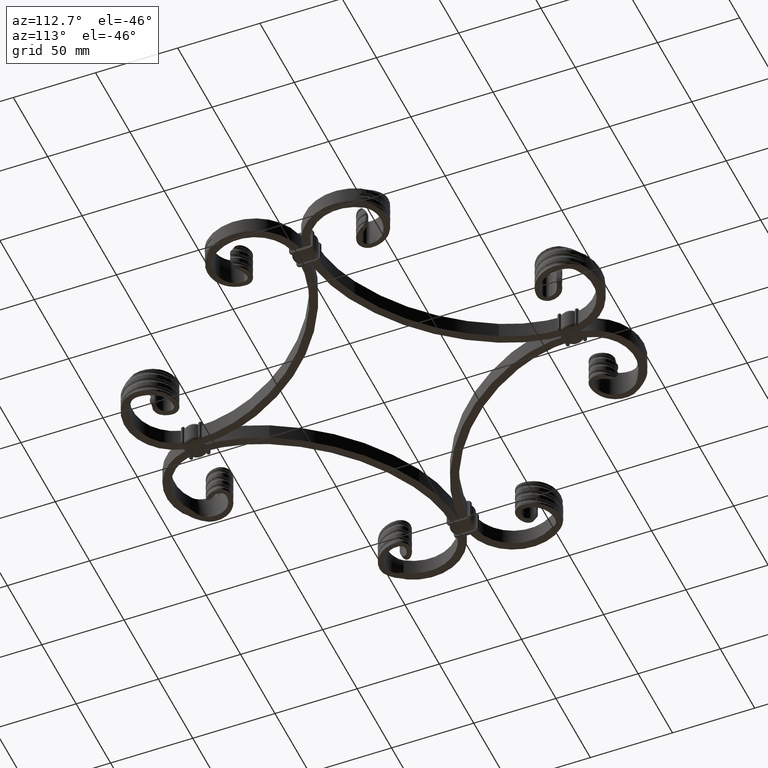
[diagram: clean part render]
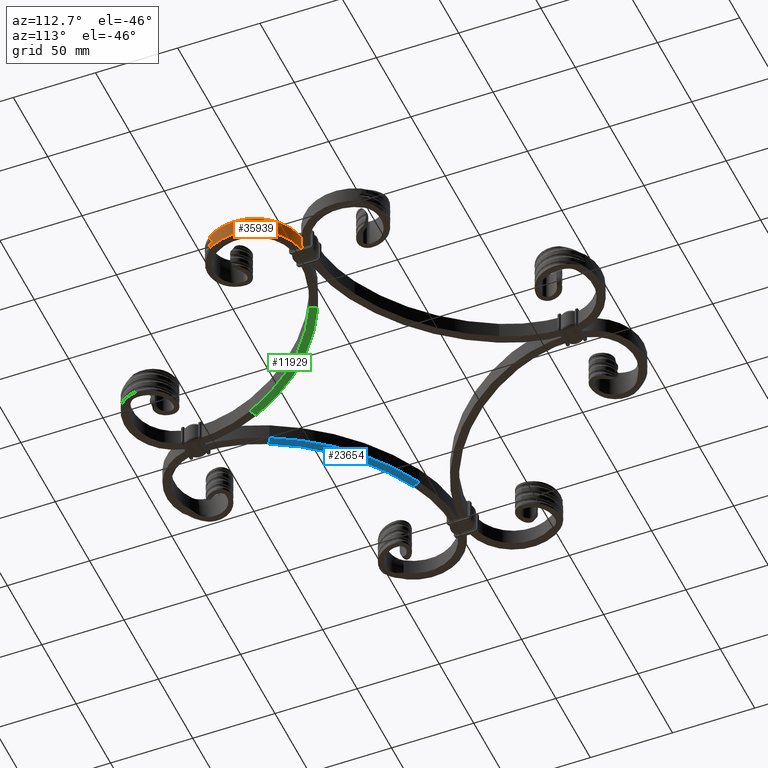
[diagram: same view with three faces highlighted in distinct colors, each labeled with its STEP entity id]
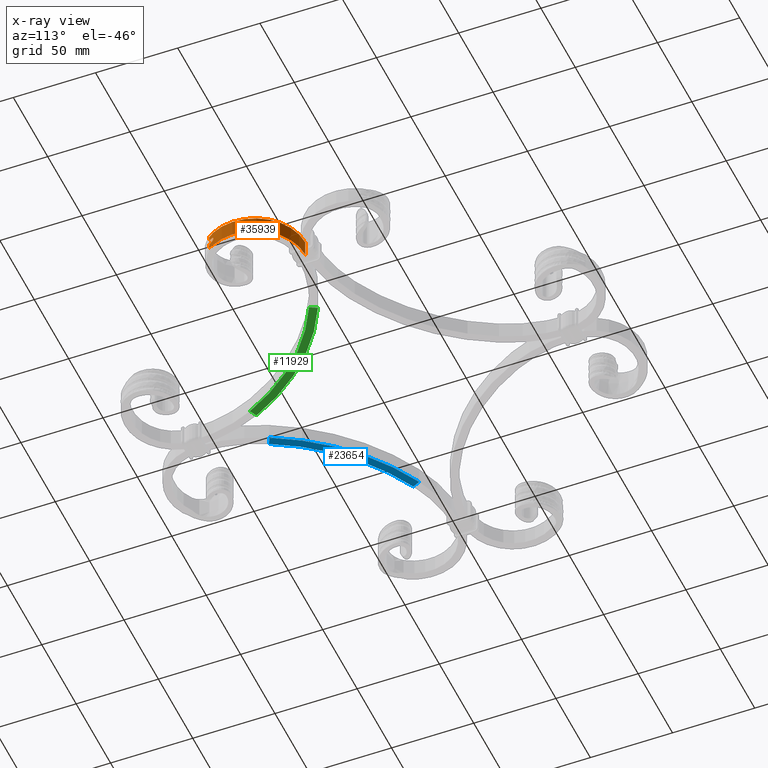
[diagram: x-ray of the same camera — body ghosted, the three highlighted faces saturated]
A machine part, auxiliary view with three faces highlighted in distinct colors.
The next image is the same camera in x-ray (body ghosted, the three faces saturated) — at least one of them is partly hidden behind the body in this view.
Their STEP definitions:

[orange] entity #35939 — the highlighted cylindrical surface (partial cylindrical patch) has radius 30.4695 mm, axis along (0, 0, 1).
#19 = CARTESIAN_POINT ( 'NONE',  ( 140.6554664666796270, -46.15419083764390251, 1.468416354188947226 ) ) ;
#354 = VECTOR ( 'NONE', #7925, 1000.000000000000000 ) ;
#666 = CARTESIAN_POINT ( 'NONE',  ( 114.5304832720491959, 9.016337449527278873E-13, -5.000000000000000000 ) ) ;
#1956 = VERTEX_POINT ( 'NONE', #33134 ) ;
#2537 = ORIENTED_EDGE ( 'NONE', *, *, #31766, .F. ) ;
#2780 = CARTESIAN_POINT ( 'NONE',  ( 141.2721817200941814, -45.07379470579365943, -4.915364388514712246 ) ) ;
#2886 = CARTESIAN_POINT ( 'NONE',  ( 140.6945728414789585, -46.08702286652270175, 4.550162584907438301 ) ) ;
#3043 = ORIENTED_EDGE ( 'NONE', *, *, #11089, .F. ) ;
#3052 = CARTESIAN_POINT ( 'NONE',  ( 141.2723333997182920, -45.07351458569133484, 4.915611313457723952 ) ) ;
#3319 = VERTEX_POINT ( 'NONE', #14822 ) ;
#3390 = CIRCLE ( 'NONE', #8620, 30.46951672795090005 ) ;
#3682 = CARTESIAN_POINT ( 'NONE',  ( 141.4645563596654938, -44.71571747425655019, 0.7114389754741711203 ) ) ;
#4063 = ORIENTED_EDGE ( 'NONE', *, *, #4640, .F. ) ;
#4148 = CARTESIAN_POINT ( 'NONE',  ( 141.2695474524247459, -45.07892962151321115, 1.094483759277297352 ) ) ;
#4381 = LINE ( 'NONE', #32810, #40998 ) ;
#4545 = EDGE_CURVE ( 'NONE', #27748, #15864, #29169, .T. ) ;
#4640 = EDGE_CURVE ( 'NONE', #5625, #43395, #22785, .T. ) ;
#5208 = EDGE_CURVE ( 'NONE', #1956, #3319, #4381, .T. ) ;
#5421 = CARTESIAN_POINT ( 'NONE',  ( 141.3241711968811671, -44.97778116659321057, 5.000000000000079048 ) ) ;
#5564 = CARTESIAN_POINT ( 'NONE',  ( 140.2649402851284890, -46.78527609127762332, 4.504376503602125048 ) ) ;
#5625 = VERTEX_POINT ( 'NONE', #19181 ) ;
#5956 = CARTESIAN_POINT ( 'NONE',  ( 139.8161792026994590, -47.47245653978914248, -4.500000000000015099 ) ) ;
#6363 = CARTESIAN_POINT ( 'NONE',  ( 141.0304201162989841, -45.50820771171139967, 4.689710995915433500 ) ) ;
#6408 = CARTESIAN_POINT ( 'NONE',  ( 139.9678844205747907, -47.24464660221566703, -4.499376343627626618 ) ) ;
#6845 = VERTEX_POINT ( 'NONE', #22157 ) ;
#7275 = CARTESIAN_POINT ( 'NONE',  ( 139.8694392070598553, -47.39476805936561021, 1.499999999999978018 ) ) ;
#7609 = CARTESIAN_POINT ( 'NONE',  ( 139.6613977379700771, -47.69823077576722170, 1.499999999999977573 ) ) ;
#7789 = DIRECTION ( 'NONE',  ( 0.000000000000000000, 0.000000000000000000, 1.000000000000000000 ) ) ;
#7925 = DIRECTION ( 'NONE',  ( 0.000000000000000000, 0.000000000000000000, 1.000000000000000000 ) ) ;
#7966 = DIRECTION ( 'NONE',  ( 0.8247887451024523697, -0.5654410013010391367, 0.000000000000000000 ) ) ;
#8183 = CARTESIAN_POINT ( 'NONE',  ( 114.5304832720493096, -30.46951672795001897, 0.000000000000000000 ) ) ;
#8620 = AXIS2_PLACEMENT_3D ( 'NONE', #37071, #44174, #7966 ) ;
#9820 = CARTESIAN_POINT ( 'NONE',  ( 139.8712379724813388, -47.39214426400684488, -1.500000000000022649 ) ) ;
#10274 = CARTESIAN_POINT ( 'NONE',  ( 140.4722264223045443, -46.45560204416413086, -1.485219069069639852 ) ) ;
#10582 = CARTESIAN_POINT ( 'NONE',  ( 141.5428231871173068, -44.56675124773936147, 0.3778545635833334693 ) ) ;
#11089 = EDGE_CURVE ( 'NONE', #43395, #6845, #3390, .T. ) ;
#12793 = CARTESIAN_POINT ( 'NONE',  ( 140.8334479785272038, -45.85181875860420320, 4.584752386527465973 ) ) ;
#12878 = ORIENTED_EDGE ( 'NONE', *, *, #4545, .T. ) ;
#13393 = CARTESIAN_POINT ( 'NONE',  ( 141.3241711968878178, -44.97778116658094660, -4.999999999999969802 ) ) ;
#13622 = CARTESIAN_POINT ( 'NONE',  ( 139.6613977379699634, -47.69823077576715065, -4.500000000000015099 ) ) ;
#14021 = CARTESIAN_POINT ( 'NONE',  ( 141.1981766138289629, -45.20910745669215913, -1.176023217423316281 ) ) ;
#14187 = CARTESIAN_POINT ( 'NONE',  ( 141.5255479493486348, -44.59961254758766103, -0.4490057321185622063 ) ) ;
#14487 = CARTESIAN_POINT ( 'NONE',  ( 140.4649051717062775, -46.46739171962153847, 1.485759726149536775 ) ) ;
#14690 = ORIENTED_EDGE ( 'NONE', *, *, #5208, .F. ) ;
#14822 = CARTESIAN_POINT ( 'NONE',  ( 139.6613977379701339, -47.69823077576707959, -1.500000000000022649 ) ) ;
#15864 = VERTEX_POINT ( 'NONE', #45289 ) ;
#17466 = CARTESIAN_POINT ( 'NONE',  ( 140.6658603228831339, -46.13683661763862176, -1.466532922022341312 ) ) ;
#17623 = CARTESIAN_POINT ( 'NONE',  ( 141.3787612013158252, -44.87668556549240861, -0.9053052284286475793 ) ) ;
#17786 = CARTESIAN_POINT ( 'NONE',  ( 141.5399494908222664, -44.57202098985437999, -0.3620268363603049155 ) ) ;
#18264 = CARTESIAN_POINT ( 'NONE',  ( 141.5642415964513248, -44.52538243320170608, -0.08651942410123461547 ) ) ;
#19181 = CARTESIAN_POINT ( 'NONE',  ( 139.6613977379699634, -47.69823077576731407, 4.499999999999976019 ) ) ;
#19592 = AXIS2_PLACEMENT_3D ( 'NONE', #8183, #43751, #22599 ) ;
#20221 = CARTESIAN_POINT ( 'NONE',  ( 140.4106816926358192, -46.55308274981756966, -4.509962772289054733 ) ) ;
#20775 = CARTESIAN_POINT ( 'NONE',  ( 139.8161422961368316, -47.47251037408415897, 4.499999999999974243 ) ) ;
#20932 = CARTESIAN_POINT ( 'NONE',  ( 139.9678514185735310, -47.24469431682299358, 4.499377645973954287 ) ) ;
#21088 = CARTESIAN_POINT ( 'NONE',  ( 139.6613977379699634, -47.69823077576731407, 4.499999999999976019 ) ) ;
#21243 = CARTESIAN_POINT ( 'NONE',  ( 141.4636034647748772, -44.71738763677644357, -0.6956814435000349128 ) ) ;
#22018 = CARTESIAN_POINT ( 'NONE',  ( 141.1896556982987079, -45.22450301914596338, 1.184641575808835334 ) ) ;
#22157 = CARTESIAN_POINT ( 'NONE',  ( 114.5304832720491959, 8.877559571449134306E-13, 5.000000000000000000 ) ) ;
#22599 = DIRECTION ( 'NONE',  ( -7.742899069889897721E-15, 1.000000000000000000, 0.000000000000000000 ) ) ;
#22785 = B_SPLINE_CURVE_WITH_KNOTS ( 'NONE', 3,
 ( #21088, #20775, #20932, #5564, #34358, #2886, #12793, #6363, #38918, #45995, #3052, #5421 ),
 .UNSPECIFIED., .F., .F.,
 ( 4, 2, 2, 2, 2, 4 ),
 ( 3.700981311091291441E-15, 0.0008209994016751896283, 0.001641998803346678224, 0.002462998205018167037, 0.002873497905853910576, 0.003283997606689654548 ),
 .UNSPECIFIED. ) ;
#23137 = DIRECTION ( 'NONE',  ( -0.000000000000000000, 0.000000000000000000, 1.000000000000000000 ) ) ;
#23976 = CARTESIAN_POINT ( 'NONE',  ( 141.3241711968878178, -44.97778116658094660, -4.999999999999969802 ) ) ;
#24121 = CARTESIAN_POINT ( 'NONE',  ( 140.8335281945370241, -45.85166160195142027, -4.584896144568666898 ) ) ;
#24287 = CARTESIAN_POINT ( 'NONE',  ( 141.0296407782646781, -45.50957580252627110, -4.689245495752950355 ) ) ;
#24689 = CARTESIAN_POINT ( 'NONE',  ( 140.9398570530420045, -45.66719007786604578, -1.363250527713951277 ) ) ;
#24709 = DIRECTION ( 'NONE',  ( 0.000000000000000000, 0.000000000000000000, 1.000000000000000000 ) ) ;
#25013 = CARTESIAN_POINT ( 'NONE',  ( 140.0718981202305429, -47.08765053026567671, 1.502022559709911498 ) ) ;
#25145 = CARTESIAN_POINT ( 'NONE',  ( 139.6613977379700771, -47.69823077576722170, 1.499999999999977573 ) ) ;
#25527 = EDGE_CURVE ( 'NONE', #15864, #6845, #44350, .T. ) ;
#27445 = CARTESIAN_POINT ( 'NONE',  ( 140.2651253087101395, -46.78498664868529033, -4.504381475841178428 ) ) ;
#27748 = VERTEX_POINT ( 'NONE', #13393 ) ;
#27826 = EDGE_LOOP ( 'NONE', ( #42544, #14690, #2537, #12878, #43326, #3043, #4063, #40233 ) ) ;
#27913 = CARTESIAN_POINT ( 'NONE',  ( 140.6943149679063936, -46.08744479986689413, -4.550129236119011544 ) ) ;
#28327 = CARTESIAN_POINT ( 'NONE',  ( 141.0290160252046405, -45.51109792648033192, -1.315637206574596707 ) ) ;
#28531 = VECTOR ( 'NONE', #24709, 1000.000000000000000 ) ;
#28806 = CARTESIAN_POINT ( 'NONE',  ( 141.5593904431286489, -44.53472447676206514, -0.1807288418930112772 ) ) ;
#29115 = CARTESIAN_POINT ( 'NONE',  ( 141.4874894964794692, -44.67208481332625070, -0.6158337506773432501 ) ) ;
#29169 = CIRCLE ( 'NONE', #45115, 30.46951672795090005 ) ;
#30694 = CARTESIAN_POINT ( 'NONE',  ( 141.3241711968811671, -44.97778116659321057, 5.000000000000079048 ) ) ;
#31766 = EDGE_CURVE ( 'NONE', #27748, #1956, #33319, .T. ) ;
#32327 = CARTESIAN_POINT ( 'NONE',  ( 139.6613977379741129, -47.69823077576133130, -5.000000000000000000 ) ) ;
#32547 = LINE ( 'NONE', #32327, #28531 ) ;
#32810 = CARTESIAN_POINT ( 'NONE',  ( 139.6613977379741129, -47.69823077576133130, -5.000000000000000000 ) ) ;
#33134 = CARTESIAN_POINT ( 'NONE',  ( 139.6613977379699634, -47.69823077576715065, -4.500000000000015099 ) ) ;
#33319 = B_SPLINE_CURVE_WITH_KNOTS ( 'NONE', 3,
 ( #23976, #2780, #45748, #42258, #24287, #24121, #27913, #20221, #27445, #6408, #5956, #13622 ),
 .UNSPECIFIED., .F., .F.,
 ( 4, 2, 2, 2, 2, 4 ),
 ( 1.094938989341896718E-16, 0.0004123031997085823937, 0.0008246063994170552830, 0.001649212798834041394, 0.002473819198251027071, 0.003298425597668013399 ),
 .UNSPECIFIED. ) ;
#34048 = EDGE_CURVE ( 'NONE', #3319, #37573, #37532, .T. ) ;
#34358 = CARTESIAN_POINT ( 'NONE',  ( 140.4103383765897206, -46.55364495280203840, 4.509917324587404686 ) ) ;
#35291 = CARTESIAN_POINT ( 'NONE',  ( 139.6613977379701339, -47.69823077576707959, -1.500000000000022649 ) ) ;
#35780 = CARTESIAN_POINT ( 'NONE',  ( 141.5635759098071276, -44.52666270423993922, 0.1916948388193434605 ) ) ;
#35939 = ADVANCED_FACE ( 'NONE', ( #37084 ), #43864, .T. ) ;
#36789 = EDGE_CURVE ( 'NONE', #37573, #5625, #32547, .T. ) ;
#37071 = CARTESIAN_POINT ( 'NONE',  ( 114.5304832720493096, -30.46951672795001897, 5.000000000000000000 ) ) ;
#37084 = FACE_OUTER_BOUND ( 'NONE', #27826, .T. ) ;
#37209 = CARTESIAN_POINT ( 'NONE',  ( 114.5304832720493096, -30.46951672795001897, -5.000000000000000000 ) ) ;
#37532 = B_SPLINE_CURVE_WITH_KNOTS ( 'NONE', 3,
 ( #35291, #9820, #46157, #10274, #17466, #24689, #28327, #14021, #39239, #17623, #42836, #21243, #29115, #14187, #17786, #28806, #18264, #35780, #10582, #3682, #43476, #4148, #22018, #43648, #39397, #19, #14487, #25013, #7275, #7609 ),
 .UNSPECIFIED., .F., .F.,
 ( 4, 2, 2, 2, 2, 2, 2, 2, 2, 2, 2, 2, 2, 2, 4 ),
 ( 1.601186431677480119E-15, 0.001113310277421301160, 0.002226620554841001170, 0.002783275693550842176, 0.003339930832260683182, 0.003618258401615588506, 0.003896585970970493397, 0.004174913540325399589, 0.004453241109680304045, 0.005009896248390114694, 0.005566551387099924475, 0.006123206525809735991, 0.006679861664519545772, 0.007793171941939126303, 0.008906482219358706834 ),
 .UNSPECIFIED. ) ;
#37573 = VERTEX_POINT ( 'NONE', #25145 ) ;
#38918 = CARTESIAN_POINT ( 'NONE',  ( 141.0937647504185009, -45.39596940904285560, 4.733453036689159177 ) ) ;
#39239 = CARTESIAN_POINT ( 'NONE',  ( 141.2770966888170960, -45.06508073047020702, -1.084261754497613417 ) ) ;
#39397 = CARTESIAN_POINT ( 'NONE',  ( 140.9306963732150564, -45.68310514919219401, 1.367642983508269960 ) ) ;
#40233 = ORIENTED_EDGE ( 'NONE', *, *, #36789, .F. ) ;
#40998 = VECTOR ( 'NONE', #7789, 1000.000000000000000 ) ;
#41126 = DIRECTION ( 'NONE',  ( 0.8247887451024523697, -0.5654410013010391367, 0.000000000000000000 ) ) ;
#42258 = CARTESIAN_POINT ( 'NONE',  ( 141.0929770566630168, -45.39737642513779292, -4.732800370367121090 ) ) ;
#42544 = ORIENTED_EDGE ( 'NONE', *, *, #34048, .F. ) ;
#42836 = CARTESIAN_POINT ( 'NONE',  ( 141.4093680814907543, -44.81944147169566151, -0.8397688676571851696 ) ) ;
#43326 = ORIENTED_EDGE ( 'NONE', *, *, #25527, .T. ) ;
#43395 = VERTEX_POINT ( 'NONE', #30694 ) ;
#43476 = CARTESIAN_POINT ( 'NONE',  ( 141.4074583550714976, -44.82363490788198845, 0.8575847813990125079 ) ) ;
#43648 = CARTESIAN_POINT ( 'NONE',  ( 141.0212027215117985, -45.52484395640119175, 1.320337671987132921 ) ) ;
#43751 = DIRECTION ( 'NONE',  ( 0.000000000000000000, 0.000000000000000000, 1.000000000000000000 ) ) ;
#43864 = CYLINDRICAL_SURFACE ( 'NONE', #19592, 30.46951672795090715 ) ;
#44174 = DIRECTION ( 'NONE',  ( -0.000000000000000000, 0.000000000000000000, 1.000000000000000000 ) ) ;
#44350 = LINE ( 'NONE', #666, #354 ) ;
#45115 = AXIS2_PLACEMENT_3D ( 'NONE', #37209, #23137, #41126 ) ;
#45289 = CARTESIAN_POINT ( 'NONE',  ( 114.5304832720491959, 8.877559571449134306E-13, -5.000000000000000000 ) ) ;
#45748 = CARTESIAN_POINT ( 'NONE',  ( 141.2145495478903285, -45.17895853187617661, -4.845989926175262141 ) ) ;
#45995 = CARTESIAN_POINT ( 'NONE',  ( 141.2147113431292951, -45.17865962584063766, 4.846221913538582449 ) ) ;
#46157 = CARTESIAN_POINT ( 'NONE',  ( 140.0754866099791229, -47.08221566208617759, -1.502105339415756857 ) ) ;

[blue] entity #23654 — the highlighted planar face has unit normal (0, 0, 1).
#3183 = CARTESIAN_POINT ( 'NONE',  ( -73.59507978403630091, -9.381487006248608651, -5.000000000000000000 ) ) ;
#5066 = ORIENTED_EDGE ( 'NONE', *, *, #41499, .F. ) ;
#7007 = CIRCLE ( 'NONE', #46304, 138.1787558030673324 ) ;
#7782 = PLANE ( 'NONE',  #14317 ) ;
#8467 = EDGE_CURVE ( 'NONE', #28190, #41138, #27812, .T. ) ;
#9682 = DIRECTION ( 'NONE',  ( 0.9001969467420305460, 0.4354830158299238807, 0.000000000000000000 ) ) ;
#10362 = ORIENTED_EDGE ( 'NONE', *, *, #8467, .T. ) ;
#11449 = EDGE_LOOP ( 'NONE', ( #10362, #44060, #5066, #41864 ) ) ;
#12387 = CARTESIAN_POINT ( 'NONE',  ( -9.381487006249189520, -73.59507978403622985, -5.000000000000000000 ) ) ;
#13423 = FACE_OUTER_BOUND ( 'NONE', #11449, .T. ) ;
#14317 = AXIS2_PLACEMENT_3D ( 'NONE', #33114, #40361, #44156 ) ;
#17941 = EDGE_CURVE ( 'NONE', #28190, #46141, #31687, .T. ) ;
#21030 = CARTESIAN_POINT ( 'NONE',  ( -13.88247173995935135, -75.77249486318585525, -5.000000000000000000 ) ) ;
#21752 = LINE ( 'NONE', #3183, #42066 ) ;
#23654 = ADVANCED_FACE ( 'NONE', ( #13423 ), #7782, .F. ) ;
#27812 = CIRCLE ( 'NONE', #43865, 133.1787558030673040 ) ;
#27880 = DIRECTION ( 'NONE',  ( 0.000000000000000000, 0.000000000000000000, 1.000000000000000000 ) ) ;
#28190 = VERTEX_POINT ( 'NONE', #21030 ) ;
#28468 = DIRECTION ( 'NONE',  ( 0.4354830158299308196, 0.9001969467420272153, 0.000000000000000000 ) ) ;
#28993 = DIRECTION ( 'NONE',  ( 0.9001969467420303239, 0.4354830158299245468, 0.000000000000000000 ) ) ;
#31371 = CARTESIAN_POINT ( 'NONE',  ( -133.7695810847829989, -133.7695810847827147, -5.000000000000000000 ) ) ;
#31687 = LINE ( 'NONE', #34872, #45796 ) ;
#32328 = CARTESIAN_POINT ( 'NONE',  ( -75.77249486318596894, -13.88247173995874562, -5.000000000000000000 ) ) ;
#32805 = DIRECTION ( 'NONE',  ( 0.000000000000000000, 0.000000000000000000, 1.000000000000000000 ) ) ;
#32896 = CARTESIAN_POINT ( 'NONE',  ( -73.59507978403630091, -9.381487006248601546, -5.000000000000000000 ) ) ;
#33114 = CARTESIAN_POINT ( 'NONE',  ( -9.381487006249196625, -73.59507978403625827, -5.000000000000000000 ) ) ;
#34872 = CARTESIAN_POINT ( 'NONE',  ( -9.381487006249196625, -73.59507978403622985, -5.000000000000000000 ) ) ;
#35453 = DIRECTION ( 'NONE',  ( 0.9001969467420302129, 0.4354830158299246579, 0.000000000000000000 ) ) ;
#37514 = EDGE_CURVE ( 'NONE', #41138, #40652, #21752, .T. ) ;
#40361 = DIRECTION ( 'NONE',  ( 0.000000000000000000, 0.000000000000000000, 1.000000000000000000 ) ) ;
#40652 = VERTEX_POINT ( 'NONE', #32896 ) ;
#41138 = VERTEX_POINT ( 'NONE', #32328 ) ;
#41499 = EDGE_CURVE ( 'NONE', #46141, #40652, #7007, .T. ) ;
#41864 = ORIENTED_EDGE ( 'NONE', *, *, #17941, .F. ) ;
#42066 = VECTOR ( 'NONE', #28468, 1000.000000000000000 ) ;
#43835 = CARTESIAN_POINT ( 'NONE',  ( -133.7695810847829989, -133.7695810847827147, -5.000000000000000000 ) ) ;
#43865 = AXIS2_PLACEMENT_3D ( 'NONE', #31371, #27880, #35453 ) ;
#44060 = ORIENTED_EDGE ( 'NONE', *, *, #37514, .T. ) ;
#44156 = DIRECTION ( 'NONE',  ( 1.000000000000000000, 0.000000000000000000, -0.000000000000000000 ) ) ;
#45796 = VECTOR ( 'NONE', #9682, 1000.000000000000114 ) ;
#46141 = VERTEX_POINT ( 'NONE', #12387 ) ;
#46304 = AXIS2_PLACEMENT_3D ( 'NONE', #43835, #32805, #28993 ) ;

[green] entity #11929 — the highlighted planar face has unit normal (0, 0, 1).
#915 = DIRECTION ( 'NONE',  ( -1.000000000000000000, 0.000000000000000000, 0.000000000000000000 ) ) ;
#2895 = AXIS2_PLACEMENT_3D ( 'NONE', #10163, #31883, #42421 ) ;
#3291 = ORIENTED_EDGE ( 'NONE', *, *, #13207, .T. ) ;
#4535 = CARTESIAN_POINT ( 'NONE',  ( 75.77249486318596894, -13.88247173995874562, -5.000000000000000000 ) ) ;
#5034 = DIRECTION ( 'NONE',  ( -0.9001969467420303239, 0.4354830158299245468, 0.000000000000000000 ) ) ;
#5477 = VERTEX_POINT ( 'NONE', #17442 ) ;
#6755 = EDGE_CURVE ( 'NONE', #17551, #5477, #8267, .T. ) ;
#7109 = CARTESIAN_POINT ( 'NONE',  ( 9.381487006249196625, -73.59507978403622985, -5.000000000000000000 ) ) ;
#7125 = VECTOR ( 'NONE', #21378, 1000.000000000000114 ) ;
#8267 = LINE ( 'NONE', #7109, #7125 ) ;
#8730 = VECTOR ( 'NONE', #14616, 1000.000000000000000 ) ;
#10163 = CARTESIAN_POINT ( 'NONE',  ( 133.7695810847829989, -133.7695810847827147, -5.000000000000000000 ) ) ;
#11929 = ADVANCED_FACE ( 'NONE', ( #40511 ), #40433, .F. ) ;
#12082 = EDGE_CURVE ( 'NONE', #17551, #17628, #37125, .T. ) ;
#13207 = EDGE_CURVE ( 'NONE', #5477, #35808, #32546, .T. ) ;
#14616 = DIRECTION ( 'NONE',  ( -0.4354830158299308196, 0.9001969467420272153, 0.000000000000000000 ) ) ;
#17442 = CARTESIAN_POINT ( 'NONE',  ( 9.381487006249189520, -73.59507978403622985, -5.000000000000000000 ) ) ;
#17551 = VERTEX_POINT ( 'NONE', #25252 ) ;
#17628 = VERTEX_POINT ( 'NONE', #4535 ) ;
#18831 = CARTESIAN_POINT ( 'NONE',  ( 9.381487006249196625, -73.59507978403625827, -5.000000000000000000 ) ) ;
#20081 = CARTESIAN_POINT ( 'NONE',  ( 133.7695810847829989, -133.7695810847827147, -5.000000000000000000 ) ) ;
#21378 = DIRECTION ( 'NONE',  ( -0.9001969467420305460, 0.4354830158299238807, 0.000000000000000000 ) ) ;
#22427 = DIRECTION ( 'NONE',  ( 0.000000000000000000, 0.000000000000000000, 1.000000000000000000 ) ) ;
#24505 = CARTESIAN_POINT ( 'NONE',  ( 73.59507978403630091, -9.381487006248601546, -5.000000000000000000 ) ) ;
#25236 = ORIENTED_EDGE ( 'NONE', *, *, #12082, .F. ) ;
#25252 = CARTESIAN_POINT ( 'NONE',  ( 13.88247173995935135, -75.77249486318585525, -5.000000000000000000 ) ) ;
#26696 = DIRECTION ( 'NONE',  ( -0.000000000000000000, -0.000000000000000000, -1.000000000000000000 ) ) ;
#29081 = CARTESIAN_POINT ( 'NONE',  ( 73.59507978403630091, -9.381487006248608651, -5.000000000000000000 ) ) ;
#31557 = AXIS2_PLACEMENT_3D ( 'NONE', #20081, #26696, #5034 ) ;
#31883 = DIRECTION ( 'NONE',  ( -0.000000000000000000, -0.000000000000000000, -1.000000000000000000 ) ) ;
#32546 = CIRCLE ( 'NONE', #31557, 138.1787558030673324 ) ;
#32927 = LINE ( 'NONE', #29081, #8730 ) ;
#34645 = EDGE_LOOP ( 'NONE', ( #25236, #43768, #3291, #39208 ) ) ;
#35808 = VERTEX_POINT ( 'NONE', #24505 ) ;
#37125 = CIRCLE ( 'NONE', #2895, 133.1787558030673040 ) ;
#37853 = AXIS2_PLACEMENT_3D ( 'NONE', #18831, #22427, #915 ) ;
#39208 = ORIENTED_EDGE ( 'NONE', *, *, #40746, .F. ) ;
#40433 = PLANE ( 'NONE',  #37853 ) ;
#40511 = FACE_OUTER_BOUND ( 'NONE', #34645, .T. ) ;
#40746 = EDGE_CURVE ( 'NONE', #17628, #35808, #32927, .T. ) ;
#42421 = DIRECTION ( 'NONE',  ( -0.9001969467420302129, 0.4354830158299246579, 0.000000000000000000 ) ) ;
#43768 = ORIENTED_EDGE ( 'NONE', *, *, #6755, .T. ) ;